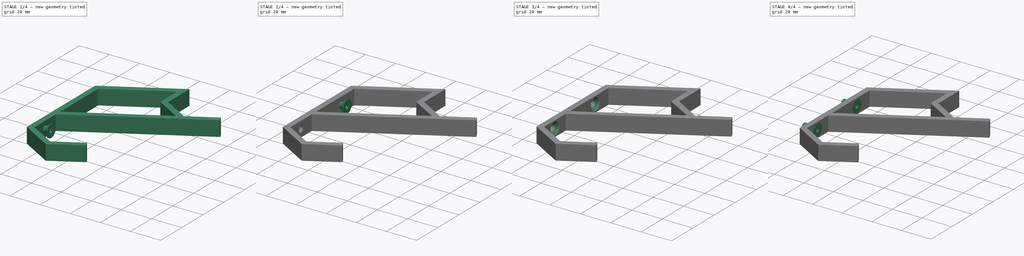
[diagram: build sequence overview — one tinted view per stage of 4, left to right]
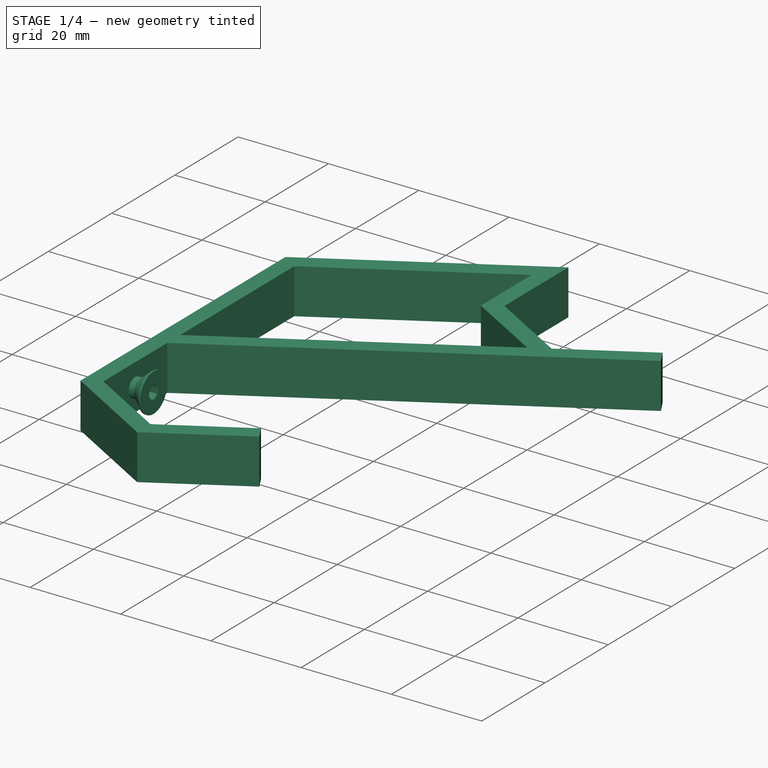
[diagram: stage 1 of 4 — iso view after this stage's code; geometry added in this stage tinted green]
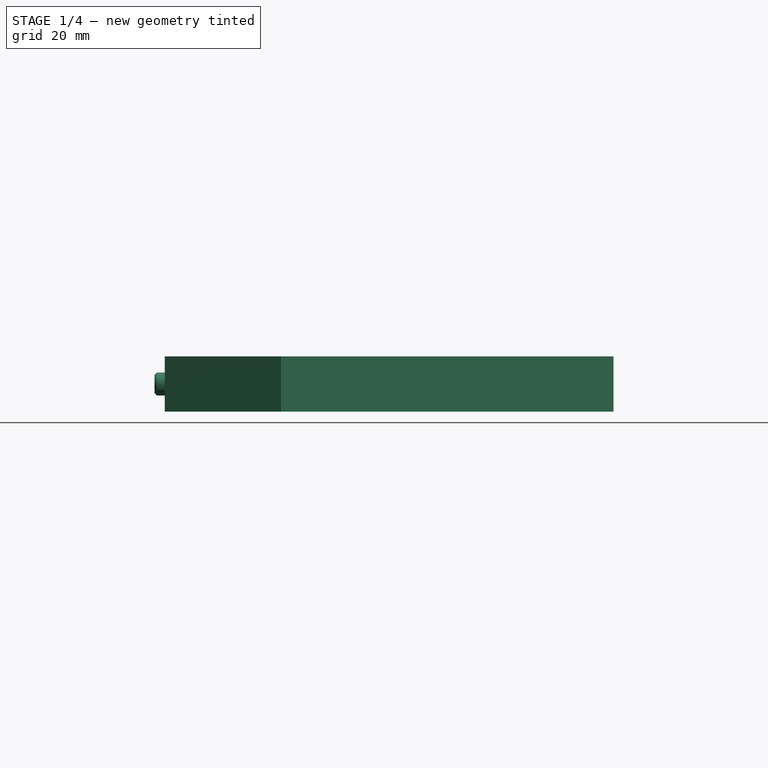
[diagram: stage 1 of 4 — front view after this stage's code; geometry added in this stage tinted green]
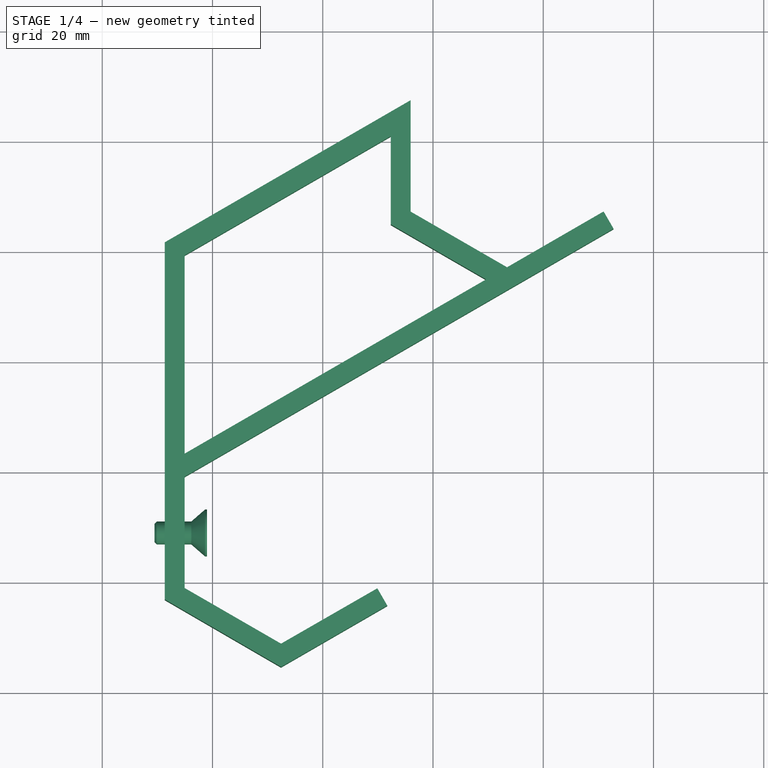
[diagram: stage 1 of 4 — top view after this stage's code; geometry added in this stage tinted green]
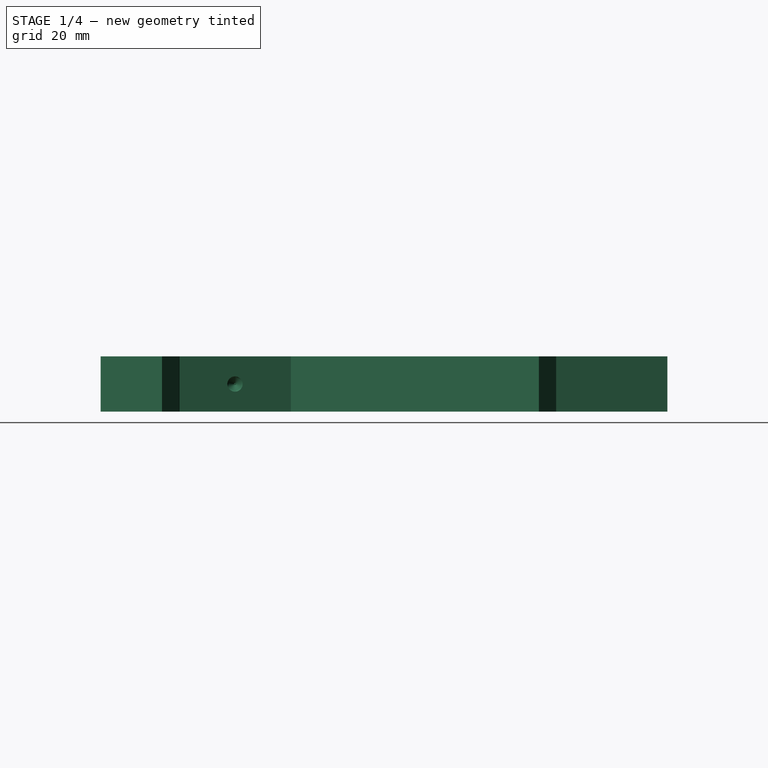
[diagram: stage 1 of 4 — right view after this stage's code; geometry added in this stage tinted green]
FCSTD DOCUMENT  (FreeCAD 0.21R33771 (Git))
Label: Mount
License: All rights reserved
objects: Part::FeaturePython×4, PartDesign::CoordinateSystem×3, App::DocumentObjectGroup×3, App::Part×2, Part::Cut×2, App::FeaturePython×1, Sketcher::SketchObject×1, PartDesign::Pad×1, PartDesign::FeatureBase×1, PartDesign::Chamfer×1, PartDesign::Body×1
note: 16 computed .brp shape members not serialized (recipe doc carries the construction recipe); baked Part::Feature solids carry a one-line shape summary decoded from their .brp

FEATURE [PartDesign::CoordinateSystem] LCS_Origin
  AttacherType = Attacher::AttachEngine3D
  MapMode = 2
  Support = -> [X_Axis]
FEATURE [App::DocumentObjectGroup] Constraints
FEATURE [App::FeaturePython] Variables  # WARN: FeaturePython — macro-defined, semantics opaque (R4)
  Type = App::PropertyContainer
FEATURE [App::DocumentObjectGroup] Configurations
FEATURE [PartDesign::CoordinateSystem] LCS_0
  AttacherType = Attacher::AttachEngine3D
  MapMode = 2
  Support = -> [X_Axis001]
FEATURE [PartDesign::CoordinateSystem] LCS_001
  AttacherType = Attacher::AttachEngine3D
  MapMode = 2
  Support = -> [X_Axis002]
FEATURE [Sketcher::SketchObject] Sketch
  FullyConstrained = false
  MapMode = 5
  Support = -> [XY_Plane002]
  sketch-geometry (28):
    g0: Circle CenterX=32.4343 CenterY=29.0452 CenterZ=0 NormalX=0 NormalY=0 NormalZ=1 AngleXU=0 Radius=17.5
    g1: Circle CenterX=32.4343 CenterY=29.0452 CenterZ=0 NormalX=0 NormalY=0 NormalZ=1 AngleXU=0 Radius=20.5
    g2: LineSegment StartX=32.4124 StartY=49.2516 StartZ=0 EndX=14.9343 EndY=39.1471 EndZ=0
    g3: LineSegment StartX=14.9343 StartY=39.1471 StartZ=0 EndX=14.9343 EndY=18.9433 EndZ=0
    g4: LineSegment StartX=14.9343 StartY=18.9433 StartZ=0 EndX=32.4343 EndY=8.83876 EndZ=0
    g5: LineSegment StartX=32.4343 StartY=8.83876 StartZ=0 EndX=49.8989 EndY=18.8822 EndZ=0
    g6: Circle CenterX=32.4343 CenterY=29.0452 CenterZ=0 NormalX=0 NormalY=0 NormalZ=1 AngleXU=0 Radius=20.2064
    g7: Circle CenterX=73.4343 CenterY=97.3319 CenterZ=0 NormalX=0 NormalY=0 NormalZ=1 AngleXU=0 Radius=17.5
    g8: Circle CenterX=73.4343 CenterY=97.3319 CenterZ=0 NormalX=0 NormalY=0 NormalZ=1 AngleXU=0 Radius=20.5
    g9: LineSegment StartX=55.9343 StartY=107.434 StartZ=0 EndX=55.9343 EndY=87.23 EndZ=0
    g10: LineSegment StartX=55.9343 StartY=87.23 StartZ=0 EndX=73.4343 EndY=77.1255 EndZ=0
    g11: LineSegment StartX=73.4343 StartY=77.1255 StartZ=0 EndX=90.9452 EndY=87.2489 EndZ=0
    g12: Circle CenterX=73.4343 CenterY=97.3319 CenterZ=0 NormalX=0 NormalY=0 NormalZ=1 AngleXU=0 Radius=20.2064
    g13: LineSegment StartX=52.9343 StartY=104.737 StartZ=0 EndX=52.9343 EndY=23.6508 EndZ=0
    g14: LineSegment StartX=38.3866 StartY=52.7054 StartZ=0 EndX=106.184 EndY=91.9005 EndZ=0
    g15: LineSegment StartX=90.9452 StartY=87.2489 StartZ=0 EndX=92.747 EndY=84.1322 EndZ=0
    g16: LineSegment StartX=49.8989 StartY=18.8822 StartZ=0 EndX=51.7007 EndY=15.7656 EndZ=0
    g17: LineSegment StartX=51.7007 StartY=15.7656 StartZ=0 EndX=32.4343 EndY=4.62726 EndZ=0
    g18: LineSegment StartX=11.3343 StartY=16.87 StartZ=0 EndX=11.3343 EndY=81.6496 EndZ=0
    g19: LineSegment StartX=90.9452 StartY=87.2489 StartZ=0 EndX=92.747 EndY=84.1322 EndZ=0
    g20: LineSegment StartX=92.747 StartY=84.1322 StartZ=0 EndX=32.4124 EndY=49.2516 EndZ=0
    g21: LineSegment StartX=32.4343 StartY=4.62726 StartZ=0 EndX=11.3343 EndY=16.87 EndZ=0
    g22: LineSegment StartX=55.9343 StartY=107.434 StartZ=0 EndX=11.3343 EndY=81.6496 EndZ=0
    g23: LineSegment StartX=14.9343 StartY=79.2951 StartZ=0 EndX=52.3343 EndY=100.917 EndZ=0
    g24: LineSegment StartX=52.3343 StartY=100.917 StartZ=0 EndX=52.3343 EndY=84.9039 EndZ=0
    g25: LineSegment StartX=52.3343 StartY=84.9039 StartZ=0 EndX=69.6224 EndY=74.9217 EndZ=0
    g26: LineSegment StartX=69.6224 StartY=74.9217 StartZ=0 EndX=14.9343 EndY=43.3054 EndZ=0
    g27: LineSegment StartX=14.9343 StartY=43.3054 StartZ=0 EndX=14.9343 EndY=79.2951 EndZ=0
  constraints (70):
    c: Diameter(g0) = 35
    c: Coincident(g1,g0)
    c: Distance(g0,g1) = 3
    c: Coincident(g2,g3)
    c: Coincident(g3,g4)
    c: Coincident(g4,g5)
    c: PointOnObject(g2,g6)
    c: PointOnObject(g2,g6)
    c: PointOnObject(g3,g6)
    c: PointOnObject(g4,g6)
    c: PointOnObject(g5,g6)
    c: Coincident(g6,g0)
    c: Vertical(g4,g0)
    c: Tangent(g3,g0)
    c: Equal(g0,g7) = 35
    c: Coincident(g8,g7)
    c: Distance(g7,g8) = 3
    c: Coincident(g9,g10)
    c: Coincident(g10,g11)
    c: PointOnObject(g9,g12)
    c: PointOnObject(g9,g12)
    c: PointOnObject(g10,g12)
    c: PointOnObject(g11,g12)
    c: Coincident(g12,g7)
    c: Vertical(g10,g7)
    c: Tangent(g9,g7)
    c: Tangent(g13,g1)
    c: Tangent(g13,g8)
    c: Vertical(g13)
    c: PointOnObject(g14,g2)
    c: Parallel(g14,g2)
    c: PointOnObject(g15,g14)
    c: Perpendicular(g15,g14)
    c: Coincident(g11,g15)
    c: Distance(g15) = 3.6
    c: Coincident(g5,g16)
    c: Coincident(g16,g17)
    c: Vertical(g18)
    c: Perpendicular(g17,g16)
    c: Parallel(g16,g15)
    c: Equal(g16,g15)
    c: Coincident(g11,g19)
    c: Coincident(g19,g15)
    c: Coincident(g19,g20)
    c: Vertical(g21,g4)
    c: Distance(g3,g21) = 3.6
    c: Distance(g2,g18) = 3.6
    c: Parallel(g22,g20)
    c: Coincident(g18,g22)
    c: Coincident(g17,g21)
    c: Coincident(g18,g21)
    c: Coincident(g23,g24)
    c: Vertical(g24)
    c: Coincident(g24,g25)
    c: Coincident(g25,g26)
    c: Coincident(g26,g27)
    c: Coincident(g27,g23)
    c: Vertical(g27)
    c: Distance(g23,g9) = 3.6
    c: Parallel(g22,g23)
    c: Parallel(g26,g20)
    c: Vertical(g26,g2)
    c: Distance(g25,g20) = 3.6
    c: Parallel(g10,g4)
    c: Parallel(g25,g10)
    c: Parallel(g11,g14)
    c: Vertical(g9)
    c: Vertical(g3)
    c: Coincident(g22,g9)
    c: Coincident(g20,g2)
FEATURE [PartDesign::Pad] Pad
  Direction = (0,0,1)
  Length = 10
  Length2 = 10
  Profile = -> Sketch
  ReferenceAxis = -> Sketch [N_Axis]
  Type = 0
FEATURE [Part::FeaturePython] Screw004  label="#8x3/8in-Screw005"  # Fasteners workbench fastener (typed FeaturePython)
  Placement = pos=(19,29,5) rot=(0,1,0;1.5708rad)
  diameter = 8
  invert = false
  leftHanded = false
  length = 4
  lengthCustom = 9.525
  matchOuter = false
  offset = 0
  thread = false
  type = 5
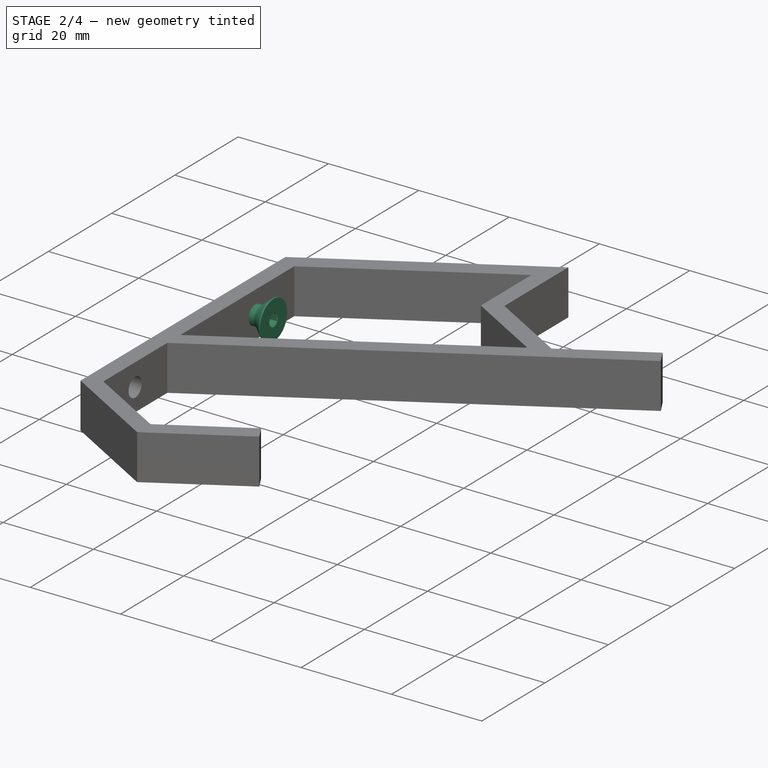
[diagram: stage 2 of 4 — iso view after this stage's code; geometry added in this stage tinted green]
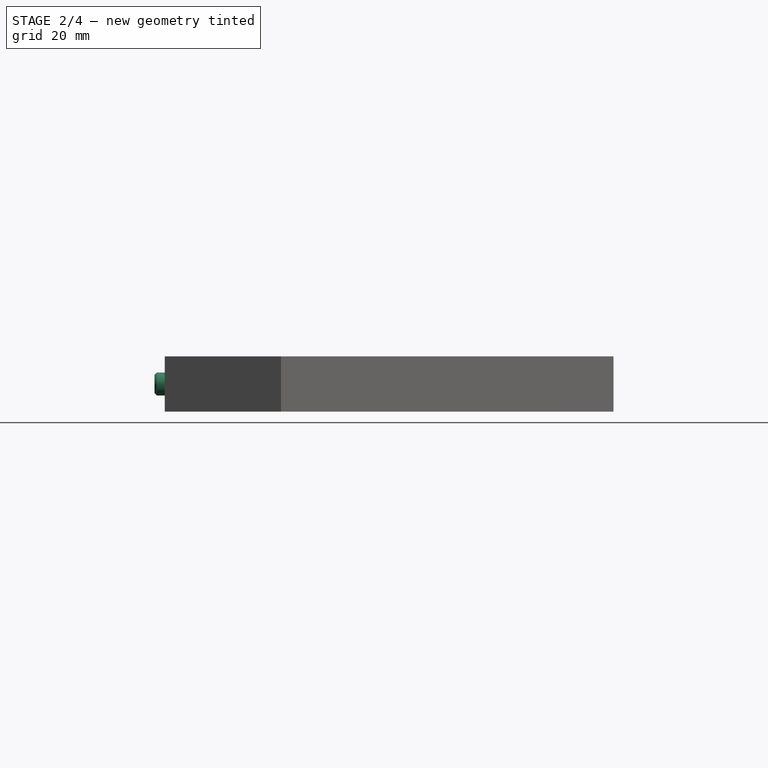
[diagram: stage 2 of 4 — front view after this stage's code; geometry added in this stage tinted green]
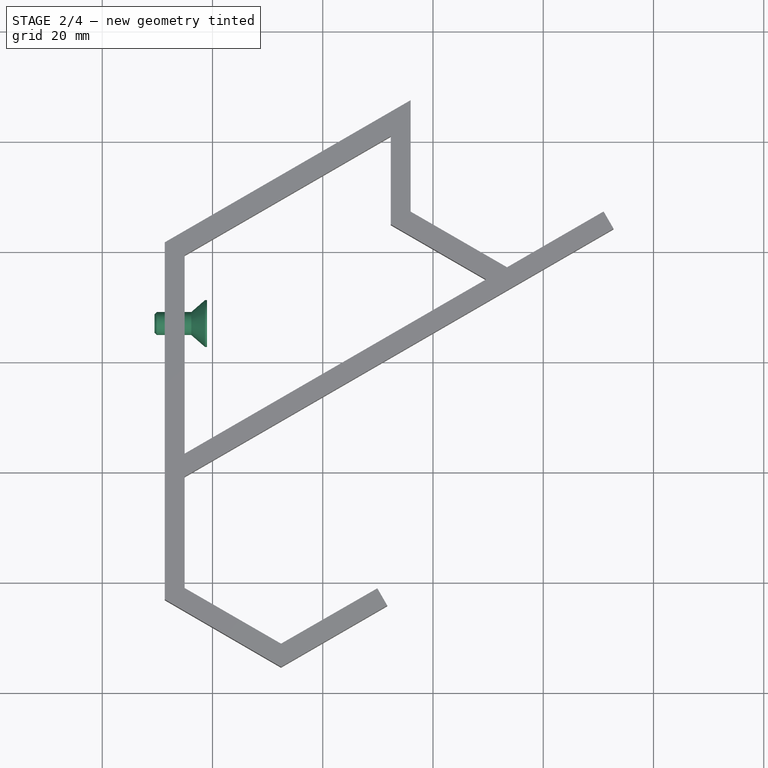
[diagram: stage 2 of 4 — top view after this stage's code; geometry added in this stage tinted green]
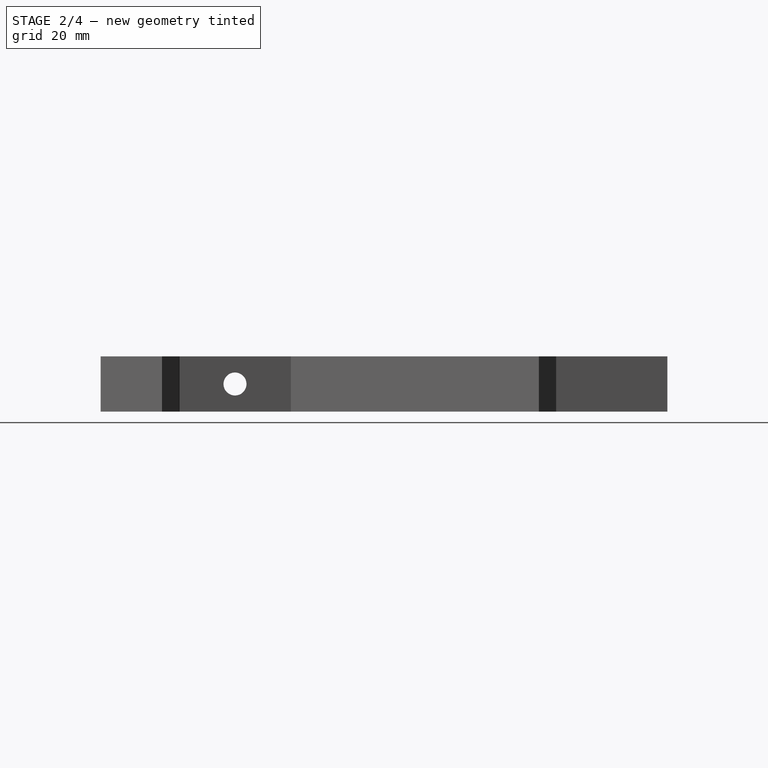
[diagram: stage 2 of 4 — right view after this stage's code; geometry added in this stage tinted green]
FEATURE [App::Part] Assembly
  AssemblyType = Part::Link
  Group = -> [LCS_Origin,Constraints,Variables,Configurations,Screw001,Screw002]
  Origin = -> Origin
  Type = Assembly
FEATURE [Part::FeaturePython] Screw003  label="#8x3/8in-Screw004"  # Fasteners workbench fastener (typed FeaturePython)
  Placement = pos=(19,67,5) rot=(0,1,0;1.5708rad)
  diameter = 8
  invert = false
  leftHanded = false
  length = 4
  lengthCustom = 9.525
  matchOuter = false
  offset = 0
  thread = false
  type = 5
FEATURE [Part::Cut] Cut
  Base = -> Pad
  Tool = -> Screw004
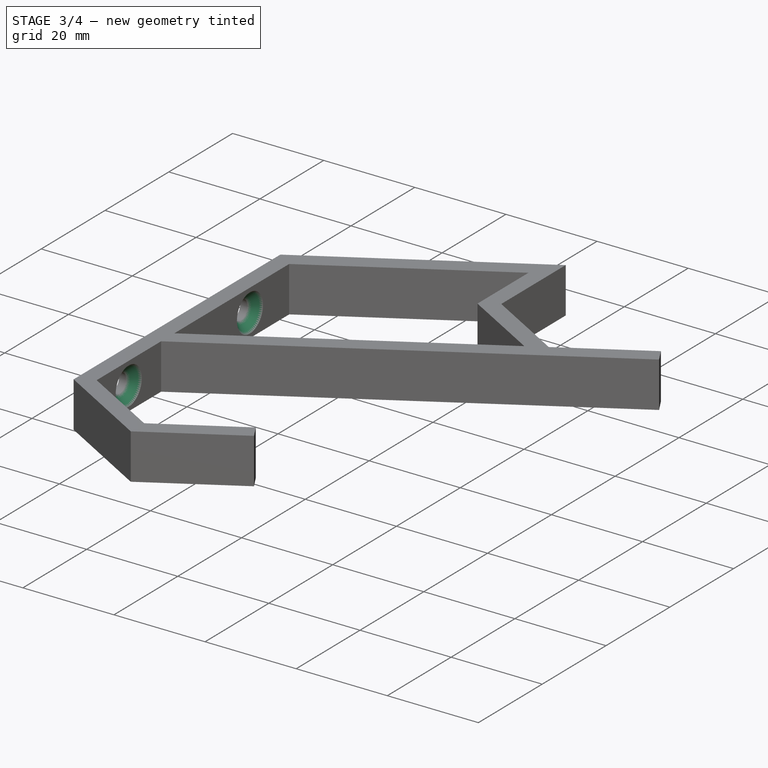
[diagram: stage 3 of 4 — iso view after this stage's code; geometry added in this stage tinted green]
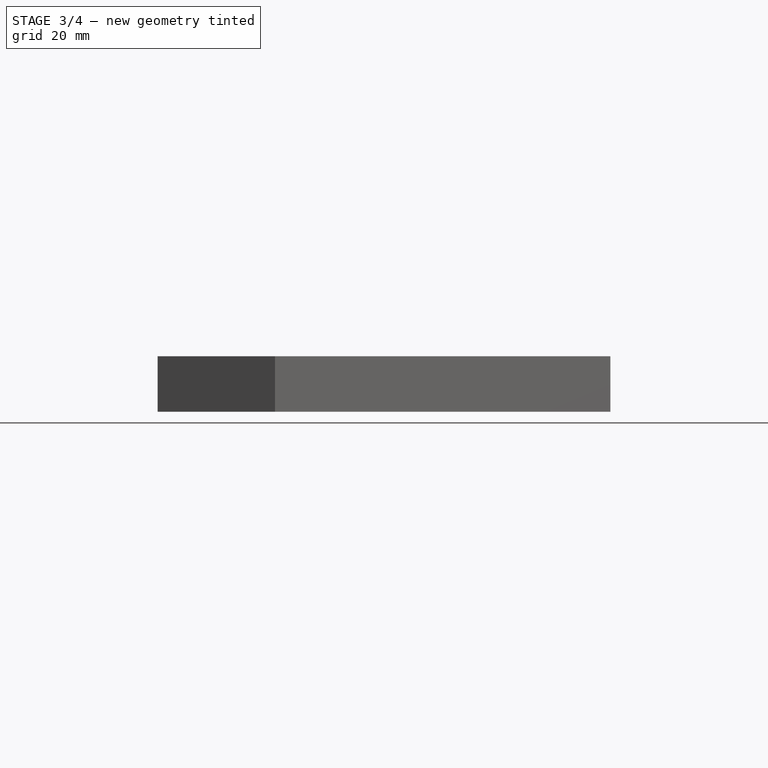
[diagram: stage 3 of 4 — front view after this stage's code; geometry added in this stage tinted green]
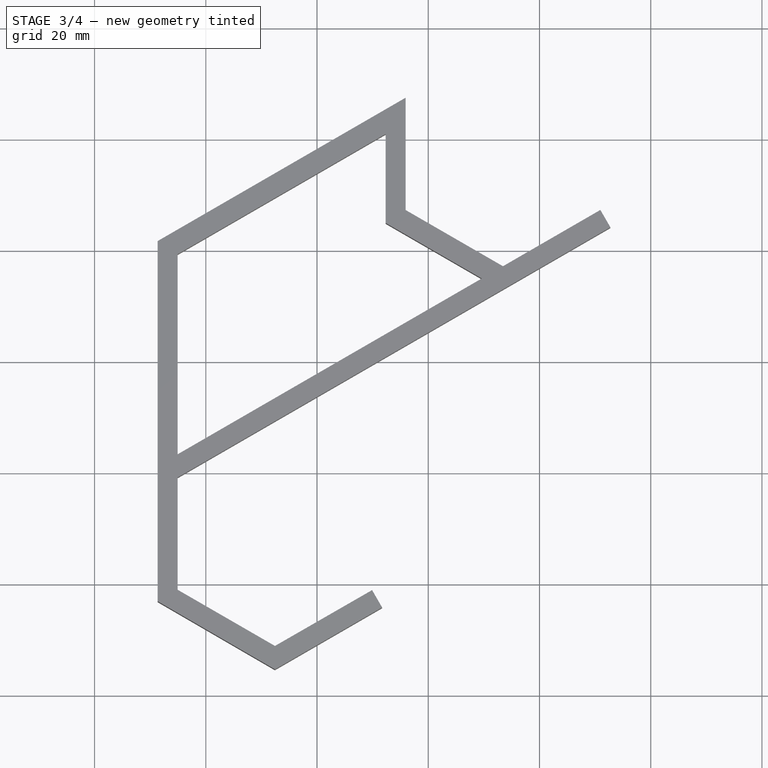
[diagram: stage 3 of 4 — top view after this stage's code; geometry added in this stage tinted green]
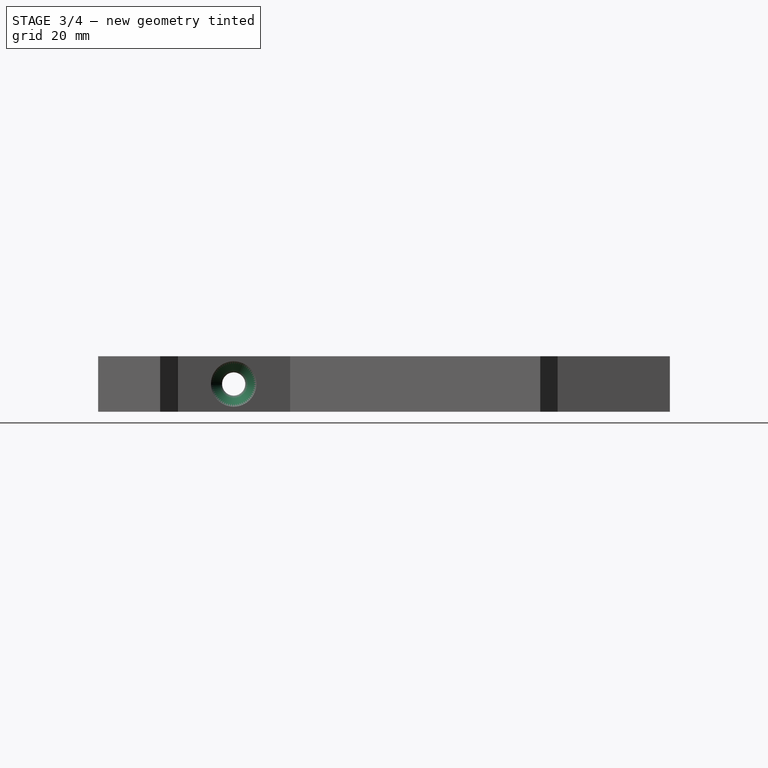
[diagram: stage 3 of 4 — right view after this stage's code; geometry added in this stage tinted green]
FEATURE [Part::Cut] Cut001
  Base = -> Cut
  Tool = -> Screw003
FEATURE [PartDesign::FeatureBase] BaseFeature
  BaseFeature = -> Cut001
FEATURE [PartDesign::Chamfer] Chamfer
  Angle = 45
  Base = -> BaseFeature [Edge61,Edge51]
  BaseFeature = -> BaseFeature
  ChamferType = 0
  FlipDirection = false
  Size = 2
  Size2 = 1
  SupportTransform = false
  UseAllEdges = false
FEATURE [PartDesign::Body] Body
  BaseFeature = -> Cut001
  Group = -> [BaseFeature,LCS_001,Chamfer]
  Origin = -> Origin002
  Tip = -> Chamfer
FEATURE [App::Part] Mount
  Group = -> [LCS_0,Body]
  Origin = -> Origin001
FEATURE [App::DocumentObjectGroup] Parts
  Group = -> [Mount]
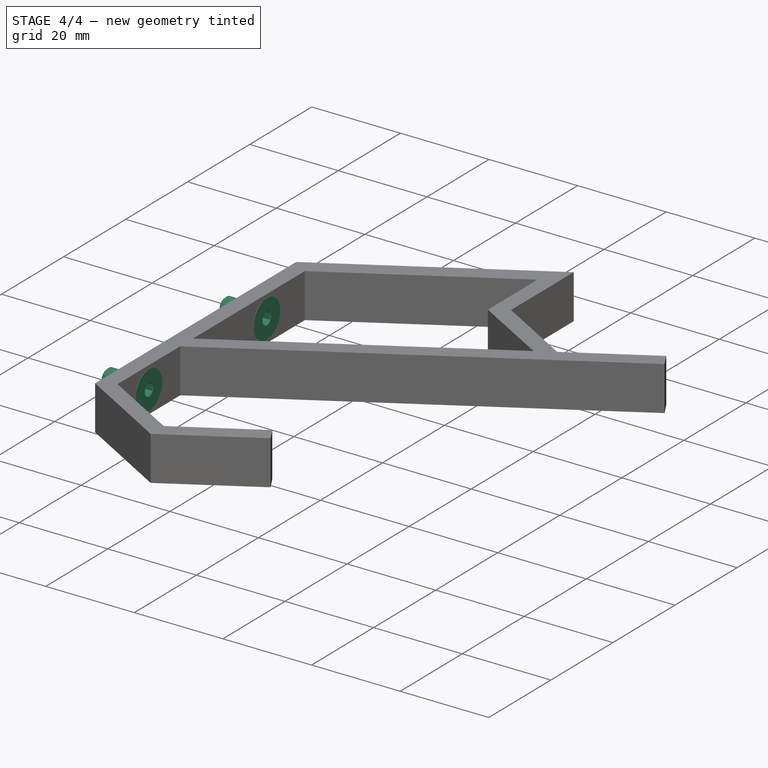
[diagram: stage 4 of 4 — iso view after this stage's code; geometry added in this stage tinted green]
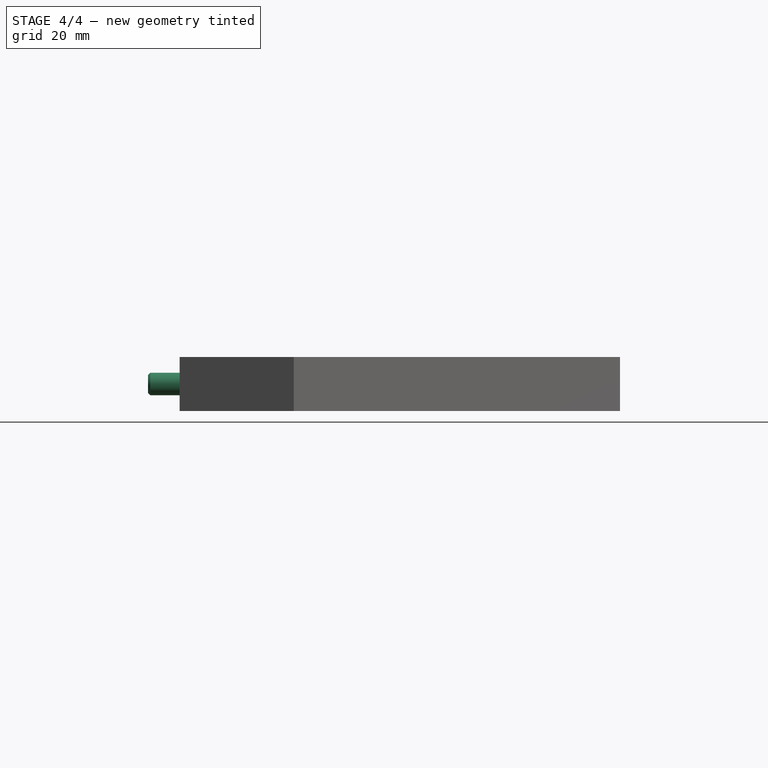
[diagram: stage 4 of 4 — front view after this stage's code; geometry added in this stage tinted green]
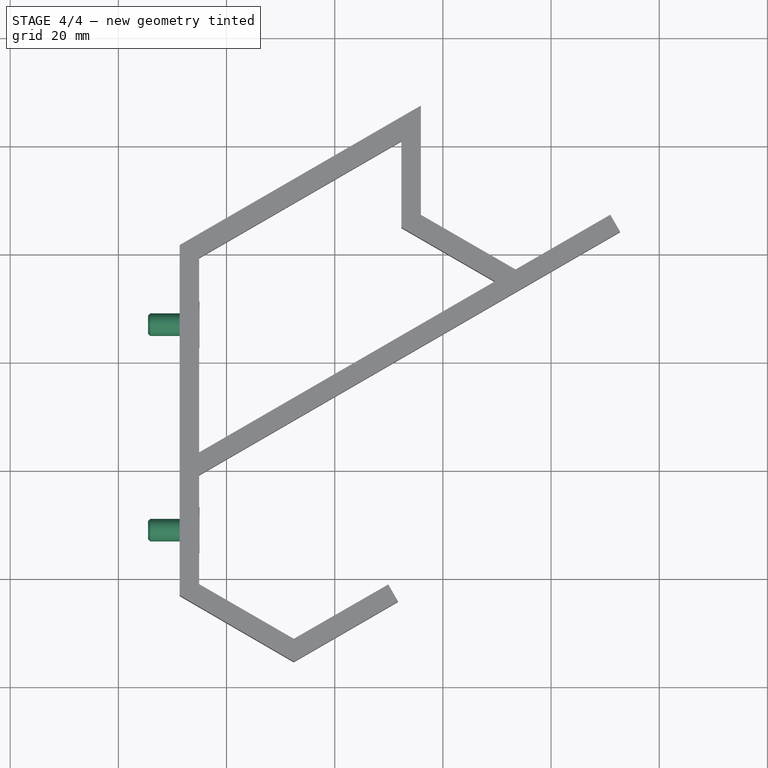
[diagram: stage 4 of 4 — top view after this stage's code; geometry added in this stage tinted green]
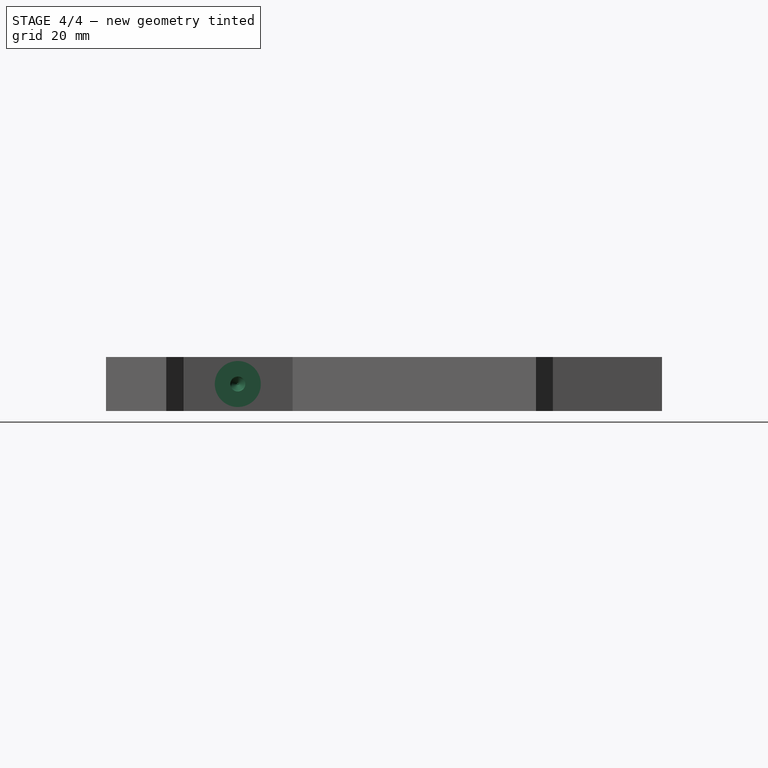
[diagram: stage 4 of 4 — right view after this stage's code; geometry added in this stage tinted green]
FEATURE [Part::FeaturePython] Screw001  label="#8x3/8in-Screw"  # Fasteners workbench fastener (typed FeaturePython)
  Placement = pos=(15,67,5) rot=(0,1,0;1.5708rad)
  diameter = 8
  invert = false
  leftHanded = false
  length = 4
  lengthCustom = 9.525
  matchOuter = false
  offset = 0
  thread = false
  type = 5
FEATURE [Part::FeaturePython] Screw002  label="#8x3/8in-Screw001"  # Fasteners workbench fastener (typed FeaturePython)
  Placement = pos=(15,29,5) rot=(0,1,0;1.5708rad)
  diameter = 8
  invert = false
  leftHanded = false
  length = 4
  lengthCustom = 9.525
  matchOuter = false
  offset = 0
  thread = false
  type = 5
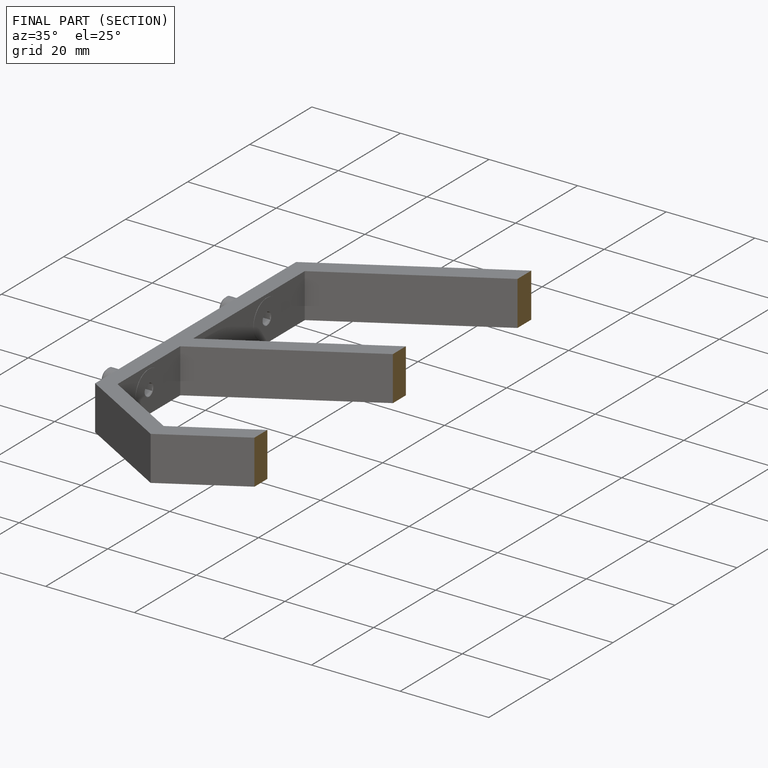
[diagram: finished part — half-section view (interior)]
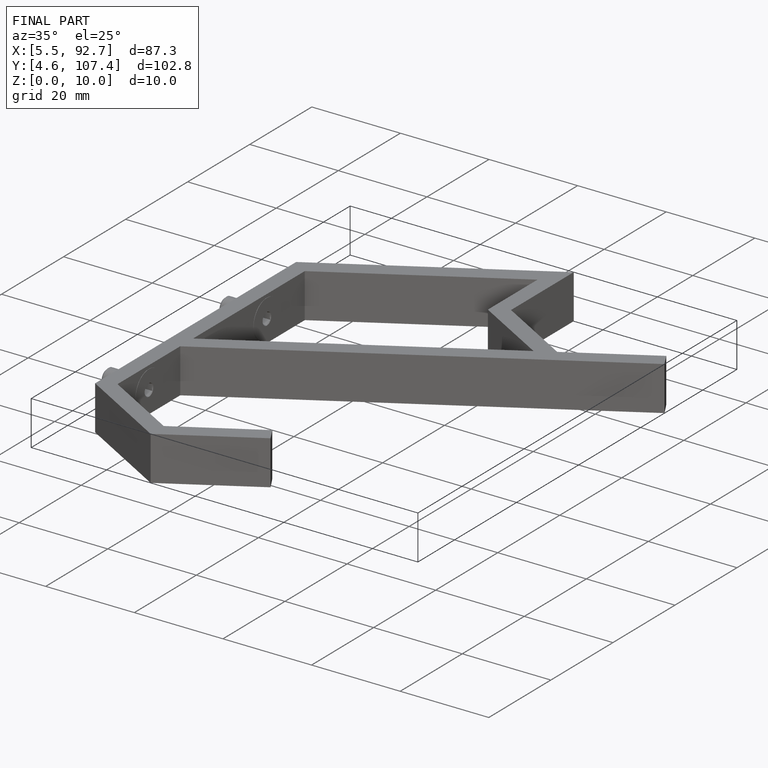
[diagram: finished part — iso view with bounding-box wireframe]
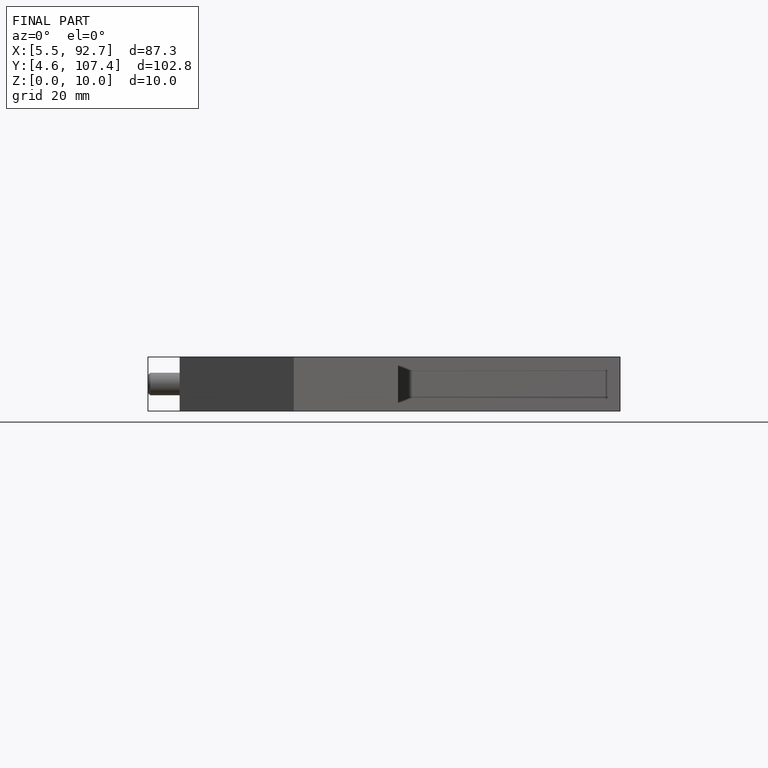
[diagram: finished part — front view with bounding-box wireframe]
